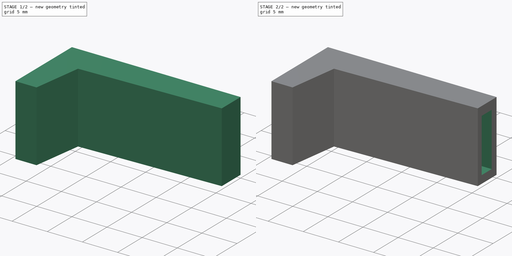
[diagram: build sequence overview — one tinted view per stage of 2, left to right]
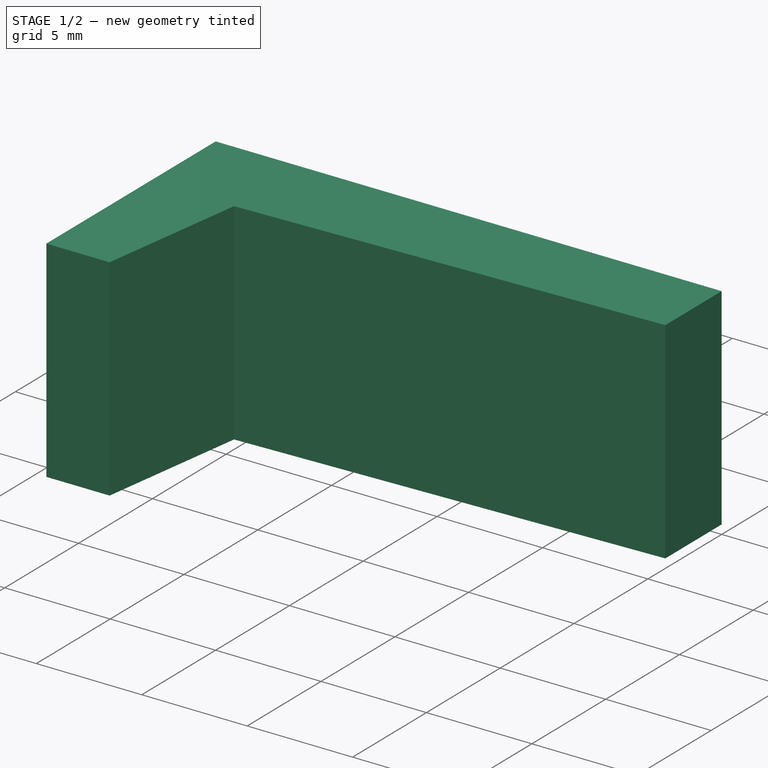
[diagram: stage 1 of 2 — iso view after this stage's code; geometry added in this stage tinted green]
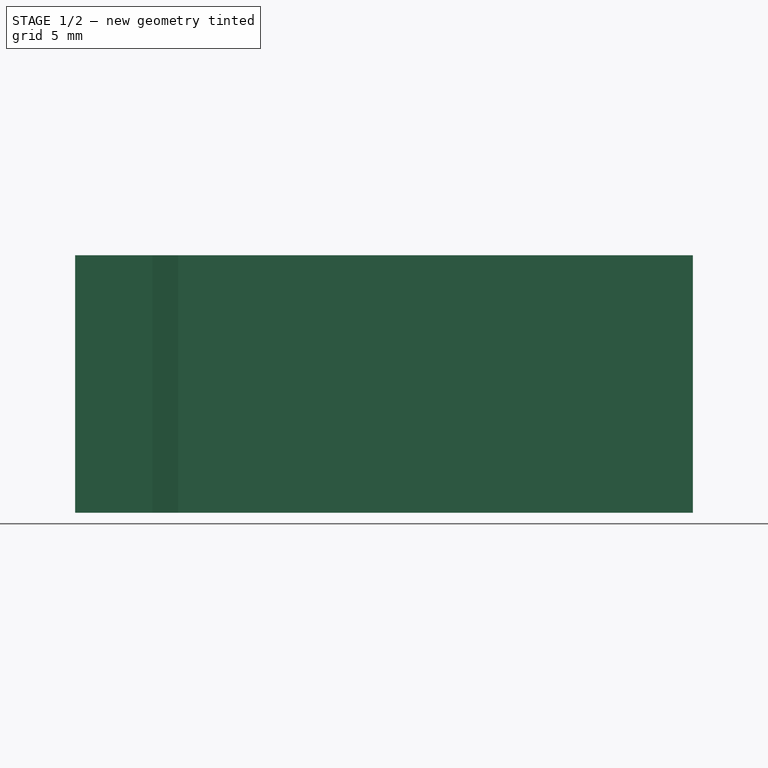
[diagram: stage 1 of 2 — front view after this stage's code; geometry added in this stage tinted green]
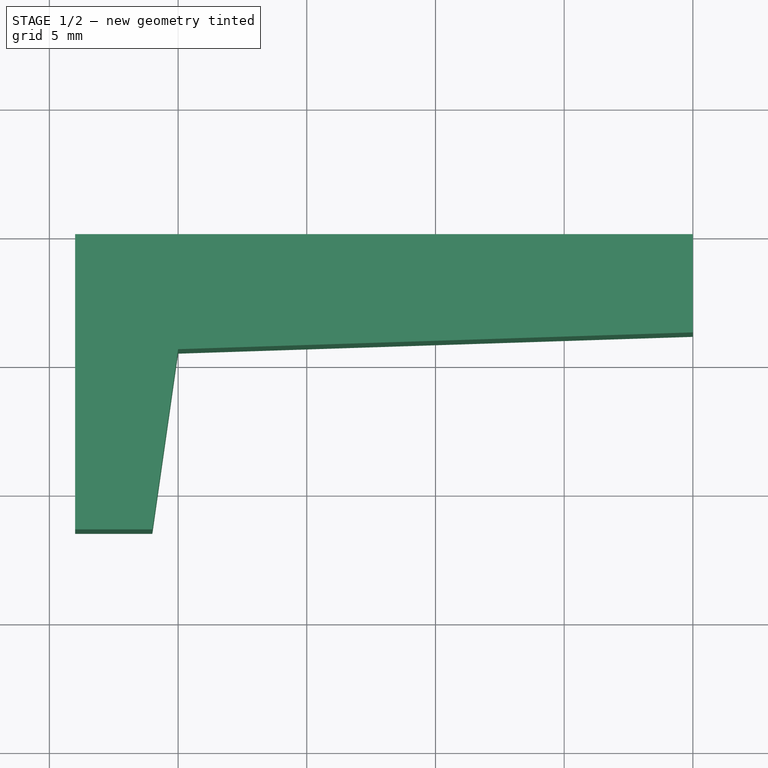
[diagram: stage 1 of 2 — top view after this stage's code; geometry added in this stage tinted green]
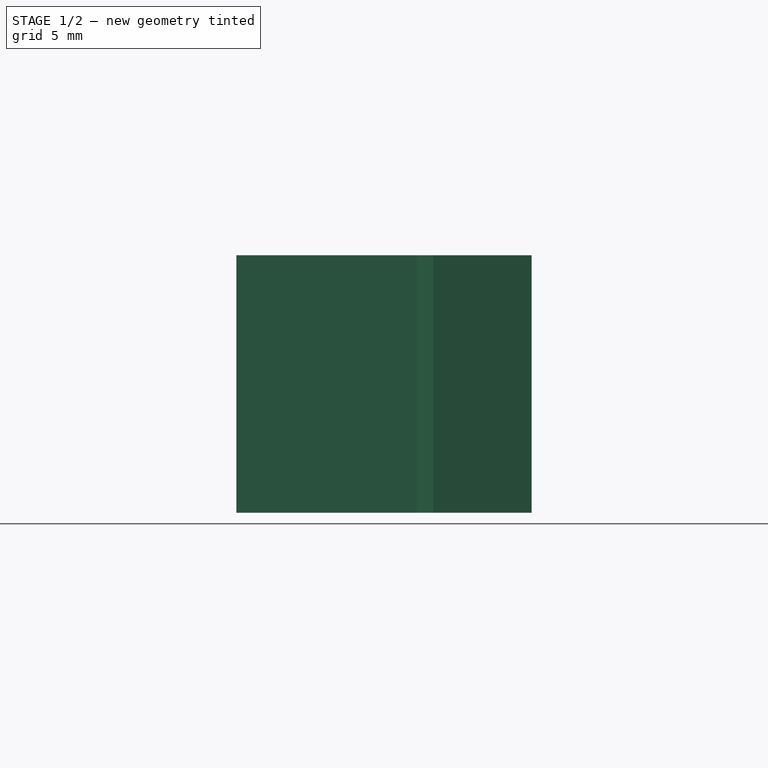
[diagram: stage 1 of 2 — right view after this stage's code; geometry added in this stage tinted green]
FCSTD DOCUMENT  (FreeCAD 0.16R6712 (Git))
Label: new peg
License: All rights reserved
LicenseURL: http://en.wikipedia.org/wiki/All_rights_reserved
objects: Sketcher::SketchObject×3, PartDesign::Pad×2, Part::Cut×1, PartDesign::Pocket×1, Part::Feature×1
note: 11 computed .brp shape members not serialized (recipe doc carries the construction recipe); baked Part::Feature solids carry a one-line shape summary decoded from their .brp

FEATURE [Sketcher::SketchObject] Sketch  label="PegSketch"
  sketch-geometry (10):
    g0: LineSegment [constr] StartX=0 StartY=0 StartZ=0 EndX=26 EndY=0 EndZ=0
    g1: LineSegment [constr] StartX=26 StartY=0 StartZ=0 EndX=26 EndY=-3.62 EndZ=0
    g2: LineSegment [constr] StartX=26 StartY=-3.62 StartZ=0 EndX=0 EndY=-4.47 EndZ=0
    g3: LineSegment [constr] StartX=0 StartY=-4.47 StartZ=0 EndX=0 EndY=0 EndZ=0
    g4: LineSegment StartX=20 StartY=0 StartZ=0 EndX=20 EndY=-3.81615 EndZ=0
    g5: LineSegment StartX=20 StartY=0 StartZ=0 EndX=-4 EndY=0 EndZ=0
    g6: LineSegment StartX=-4 StartY=0 StartZ=0 EndX=-4 EndY=-11.47 EndZ=0
    g7: LineSegment StartX=-4 StartY=-11.47 StartZ=0 EndX=-1 EndY=-11.47 EndZ=0
    g8: LineSegment StartX=-1 StartY=-11.47 StartZ=0 EndX=0 EndY=-4.47 EndZ=0
    g9: LineSegment StartX=0 StartY=-4.47 StartZ=0 EndX=20 EndY=-3.81615 EndZ=0
  constraints (28):
    c: Horizontal(g0)
    c: Coincident(g0,g1)
    c: Vertical(g1)
    c: Coincident(g1,g2)
    c: Coincident(g2,g3)
    c: Coincident(g3,g0)
    c: Vertical(g3)
    c: DistanceY(g2,g0) = 4.47
    c: DistanceY(g1,g0) = 3.62
    c: DistanceX(g0,g0) = 26
    c: Coincident(g0,g-1)
    c: Vertical(g4)
    c: PointOnObject(g4,g0)
    c: PointOnObject(g4,g2)
    c: DistanceX(g-1,g4) = 20
    c: Coincident(g5,g4)
    c: PointOnObject(g5,g-1)
    c: DistanceX(g5,g5) = 24
    c: Coincident(g6,g5)
    c: Vertical(g6)
    c: DistanceY(g6,g6) = 11.47
    c: Coincident(g7,g6)
    c: Horizontal(g7)
    c: DistanceX(g7,g7) = 3
    c: Coincident(g8,g7)
    c: Coincident(g8,g2)
    c: Coincident(g9,g2)
    c: Coincident(g9,g4)
FEATURE [PartDesign::Pad] Pad  label="PegPad"
  Length = 10
  Length2 = 100
  Sketch = -> Sketch
  Type = 0
FEATURE [Part::Cut] Cut  label="PegCut"
  Base = -> Pad
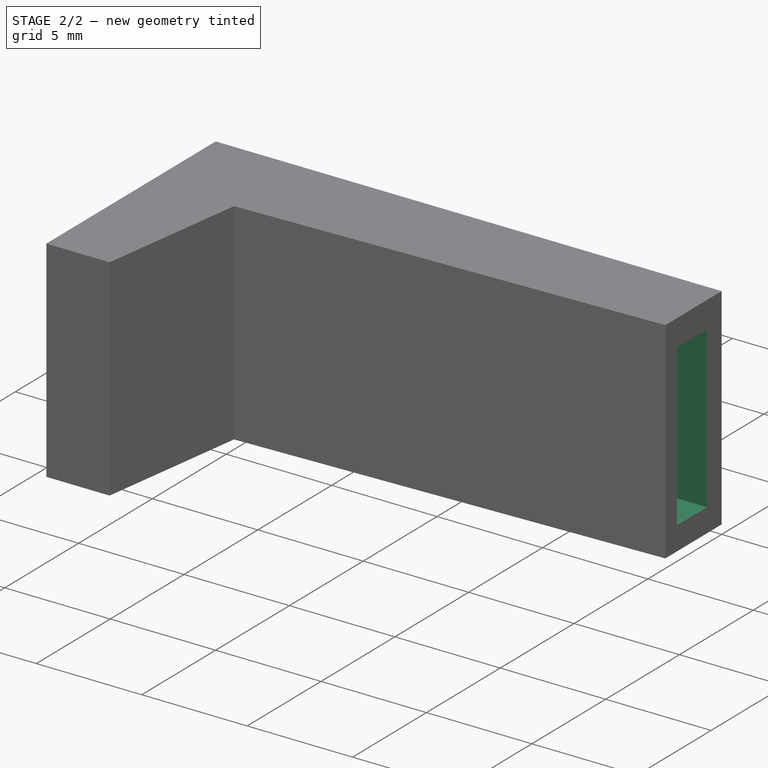
[diagram: stage 2 of 2 — iso view after this stage's code; geometry added in this stage tinted green]
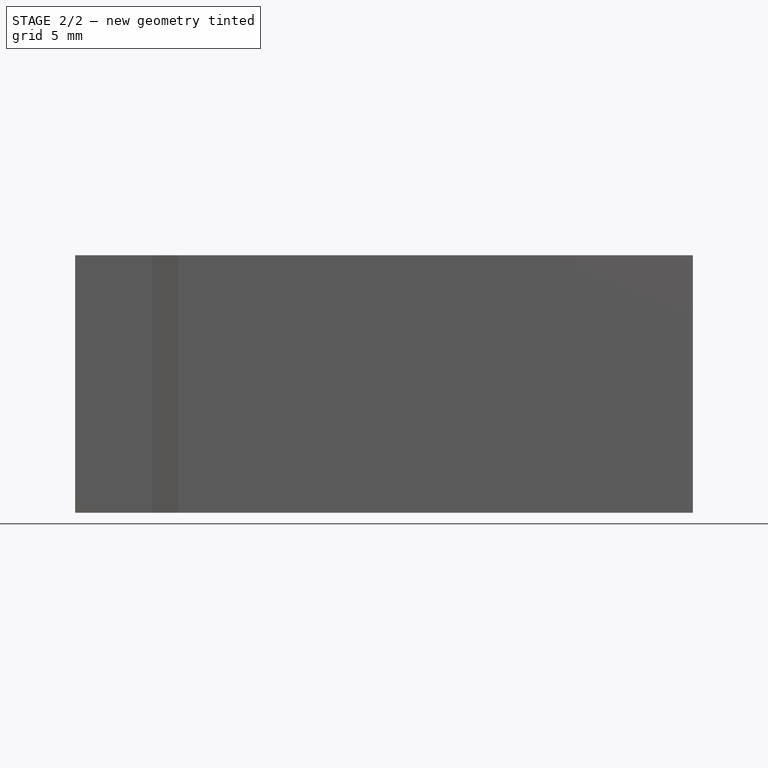
[diagram: stage 2 of 2 — front view after this stage's code; geometry added in this stage tinted green]
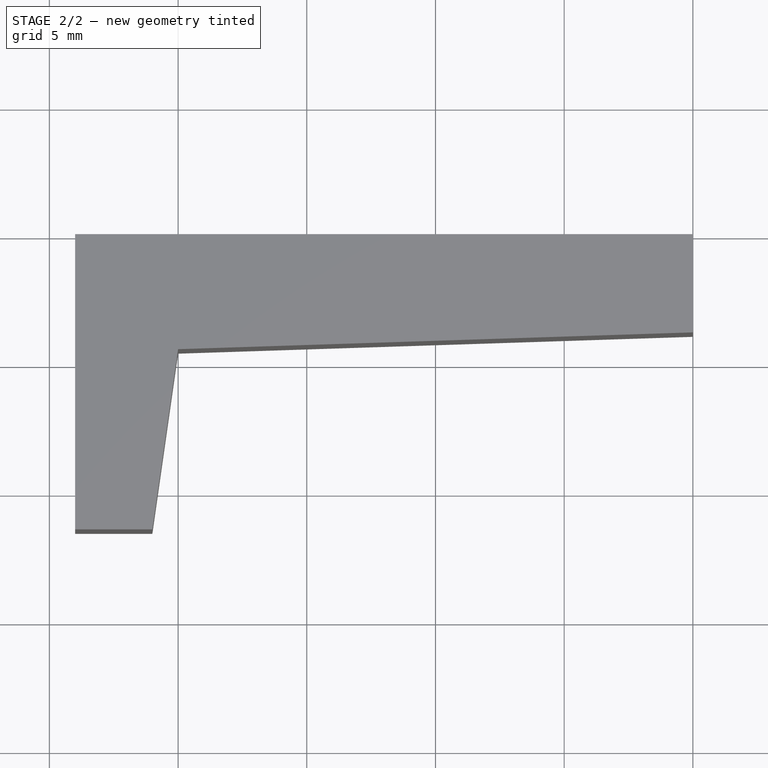
[diagram: stage 2 of 2 — top view after this stage's code; geometry added in this stage tinted green]
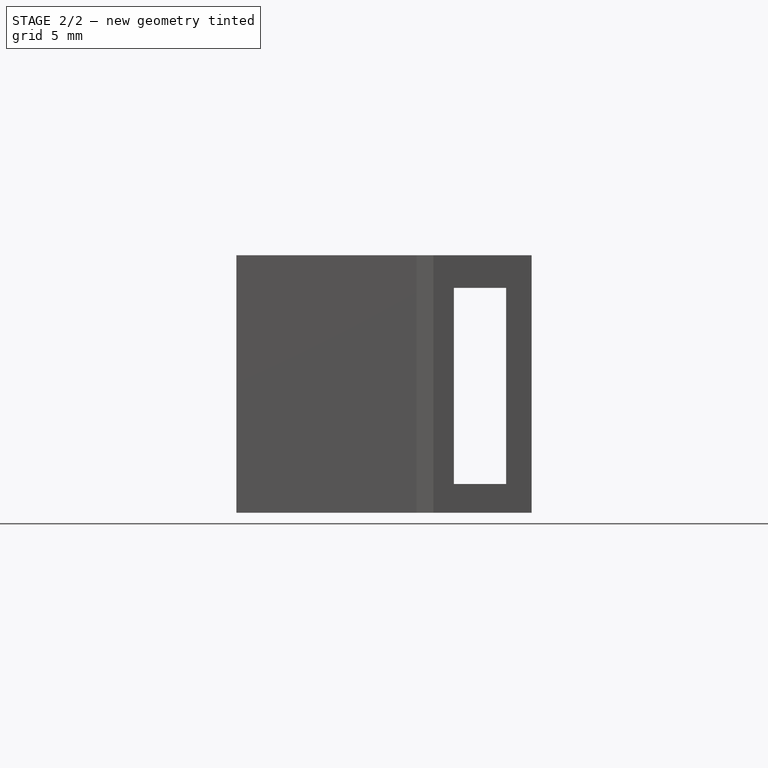
[diagram: stage 2 of 2 — right view after this stage's code; geometry added in this stage tinted green]
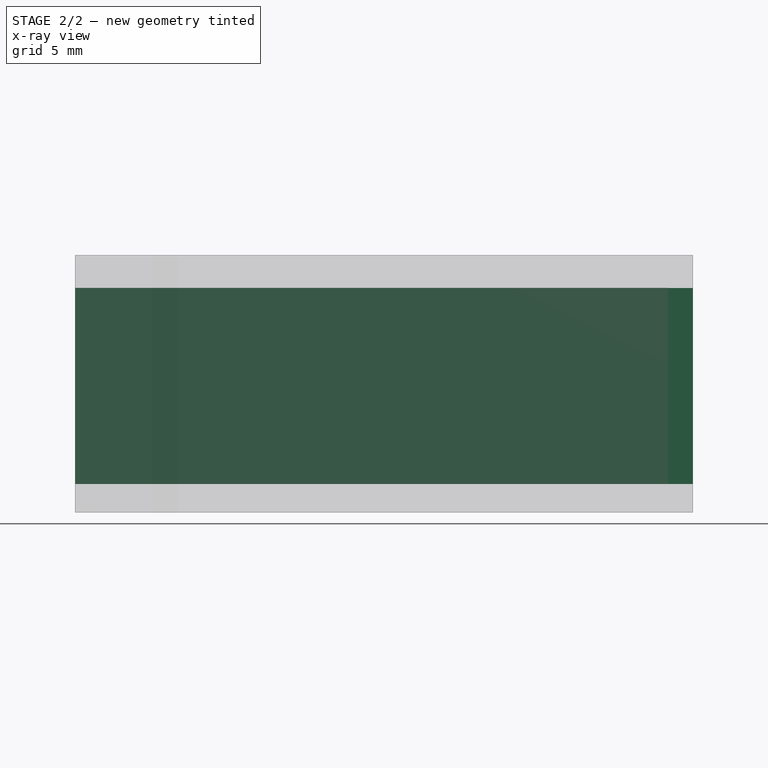
[diagram: stage 2 of 2 — x-ray composite at the front view; earlier geometry ghosted, this stage's added geometry solid]
FEATURE [Sketcher::SketchObject] Sketch001
  Placement = pos=(20,0,0) rot=(0.57735,0.57735,0.57735;2.0944rad)
  Support = -> Cut [Face1]
  sketch-geometry (4):
    g0: LineSegment StartX=-3.02168 StartY=8.73566 StartZ=0 EndX=-0.989684 EndY=8.73566 EndZ=0
    g1: LineSegment StartX=-0.989684 StartY=8.73566 StartZ=0 EndX=-0.989684 EndY=1.11566 EndZ=0
    g2: LineSegment StartX=-0.989684 StartY=1.11566 StartZ=0 EndX=-3.02168 EndY=1.11566 EndZ=0
    g3: LineSegment StartX=-3.02168 StartY=1.11566 StartZ=0 EndX=-3.02168 EndY=8.73566 EndZ=0
  constraints (10):
    c: Coincident(g0,g1)
    c: Coincident(g1,g2)
    c: Coincident(g2,g3)
    c: Coincident(g3,g0)
    c: Horizontal(g0)
    c: Horizontal(g2)
    c: Vertical(g1)
    c: Vertical(g3)
    c: DistanceX(g0,g0) = 2.032
    c: DistanceY(g1,g1) = 7.62
FEATURE [PartDesign::Pocket] Pocket
  Length = 76.2
  Sketch = -> Sketch001
  Type = 0
FEATURE [Sketcher::SketchObject] Sketch002
  Placement = pos=(20,0,0) rot=(0.57735,0.57735,0.57735;2.0944rad)
  Support = -> Pocket [Face1]
  sketch-geometry (4):
    g0: LineSegment StartX=0 StartY=9.99992 StartZ=0 EndX=1 EndY=9.99992 EndZ=0
    g1: LineSegment StartX=1 StartY=9.99992 StartZ=0 EndX=1 EndY=0 EndZ=0
    g2: LineSegment StartX=1 StartY=0 StartZ=0 EndX=0 EndY=0 EndZ=0
    g3: LineSegment StartX=0 StartY=0 StartZ=0 EndX=0 EndY=9.99992 EndZ=0
  constraints (10):
    c: Coincident(g0,g1)
    c: Coincident(g1,g2)
    c: Coincident(g2,g3)
    c: Coincident(g3,g0)
    c: Horizontal(g0)
    c: Horizontal(g2)
    c: Vertical(g1)
    c: Vertical(g3)
    c: Coincident(g2,g-1)
    c: DistanceX(g2,g2) = 1
FEATURE [PartDesign::Pad] Pad001
  Length = 10
  Length2 = 100
  Sketch = -> Sketch002
  Type = 0
FEATURE [Part::Feature] Pad003
  Placement = pos=(-3.99954,-0.00324047,0) rot=(0.57735,0.57735,0.57735;2.0944rad)
  shape: bbox 24 x 1 x 10 mm, 6 faces (baked)
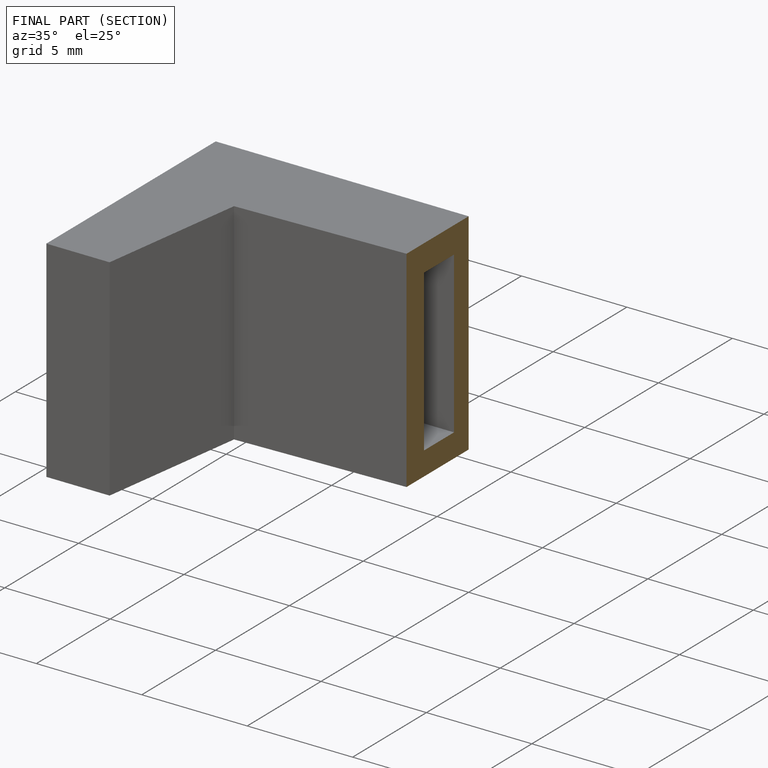
[diagram: finished part — half-section view (interior)]
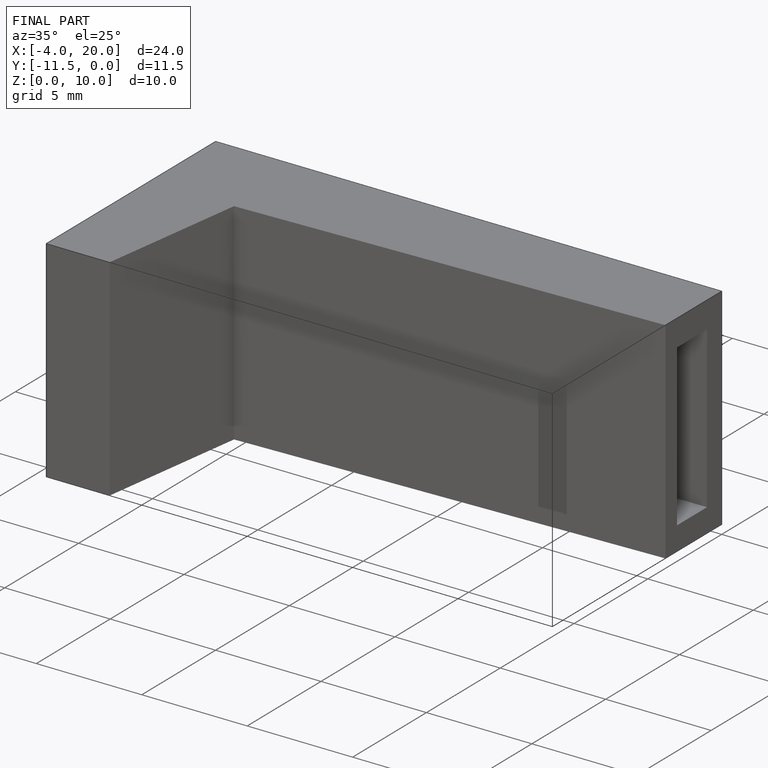
[diagram: finished part — iso view with bounding-box wireframe]
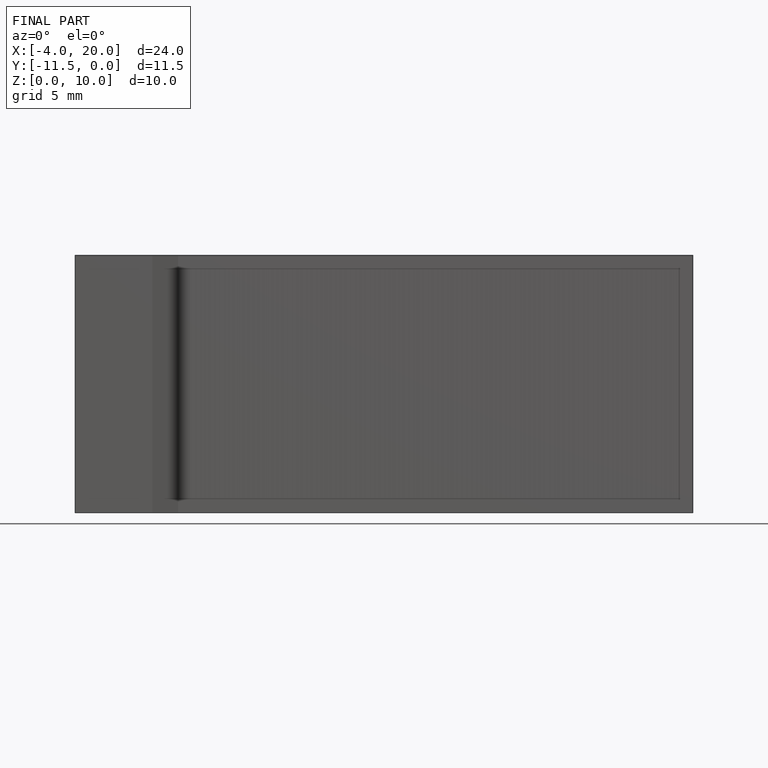
[diagram: finished part — front view with bounding-box wireframe]
